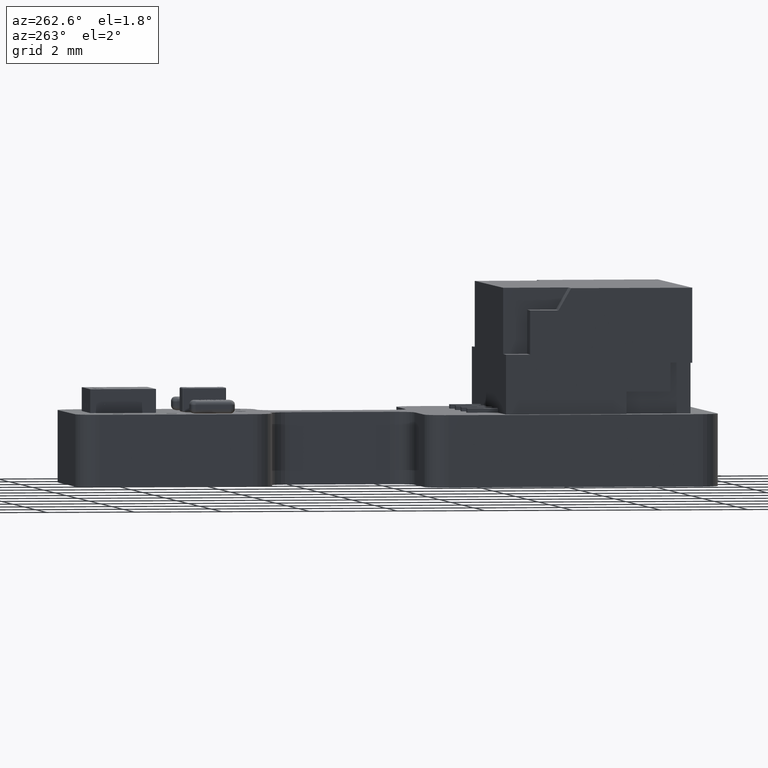
[diagram: clean part render]
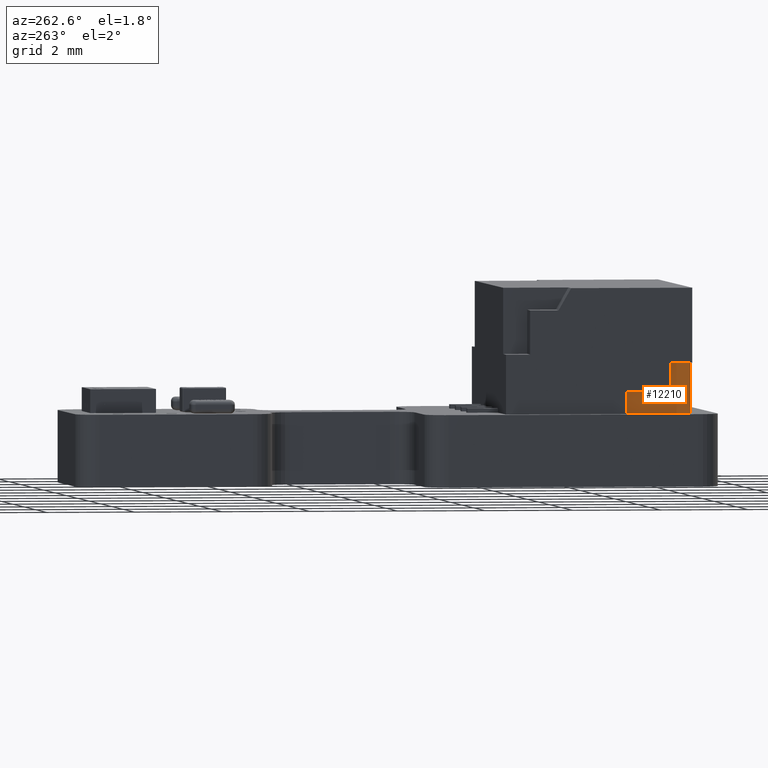
[diagram: same view with one face highlighted and labeled with its STEP entity id]
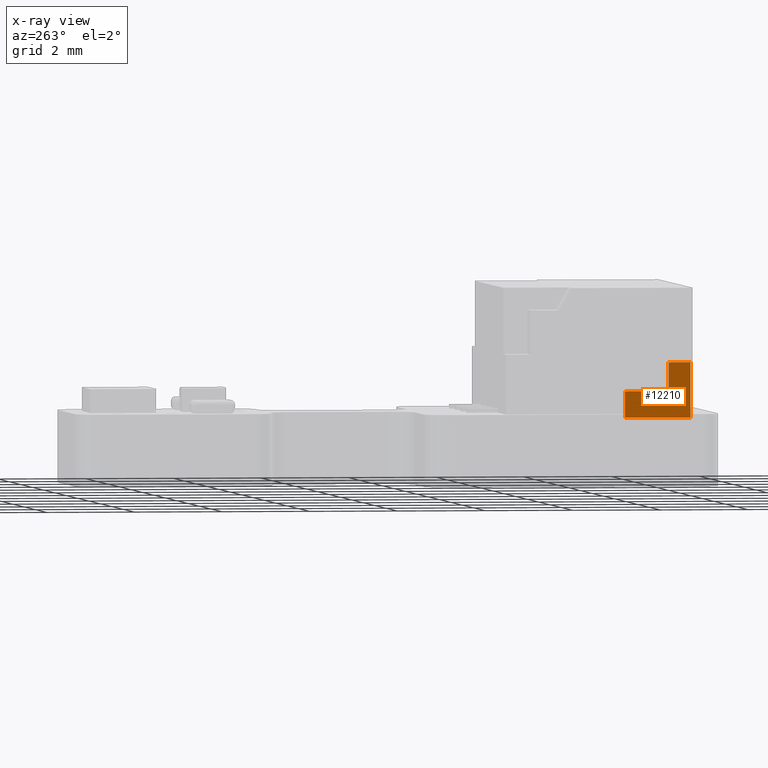
[diagram: x-ray of the same camera — body ghosted, the highlighted face saturated]
A machine part, auxiliary view. The second image highlights one B-rep face of the part: STEP entity #12210.
The next image is the same camera in x-ray: the body ghosted, the highlighted face saturated — about 0% of this face is hidden behind the body in this view.
In plain terms, the highlighted planar face has unit normal (-1, -0, -0).
Its self-contained STEP definition (entity closure, byte-faithful):
#11463 = VERTEX_POINT('',#11464);
#11464 = CARTESIAN_POINT('',(-2.7,1.555,3.895));
#11472 = EDGE_CURVE('',#11463,#11473,#11475,.T.);
#11473 = VERTEX_POINT('',#11474);
#11474 = CARTESIAN_POINT('',(-2.7,0.305,3.895));
#11475 = LINE('',#11476,#11477);
#11476 = CARTESIAN_POINT('',(-2.7,1.555,3.895));
#11477 = VECTOR('',#11478,1.);
#11478 = DIRECTION('',(-2.438091212181E-029,-1.,-3.491483361109E-015));
#12020 = VERTEX_POINT('',#12021);
#12021 = CARTESIAN_POINT('',(-2.7,0.355,2.395));
#12144 = EDGE_CURVE('',#12145,#11463,#12147,.T.);
#12145 = VERTEX_POINT('',#12146);
#12146 = CARTESIAN_POINT('',(-2.7,1.555,3.395));
#12147 = LINE('',#12148,#12149);
#12148 = CARTESIAN_POINT('',(-2.7,1.555,2.595));
#12149 = VECTOR('',#12150,1.);
#12150 = DIRECTION('',(6.982966722219E-015,-3.491483361109E-015,1.));
#12210 = ADVANCED_FACE('',(#12211),#12251,.T.);
#12211 = FACE_BOUND('',#12212,.T.);
#12212 = EDGE_LOOP('',(#12213,#12223,#12229,#12237,#12243,#12244,#12245)
  );
#12213 = ORIENTED_EDGE('',*,*,#12214,.F.);
#12214 = EDGE_CURVE('',#12215,#12217,#12219,.T.);
#12215 = VERTEX_POINT('',#12216);
#12216 = CARTESIAN_POINT('',(-2.7,0.905,2.395));
#12217 = VERTEX_POINT('',#12218);
#12218 = CARTESIAN_POINT('',(-2.7,0.905,3.395));
#12219 = LINE('',#12220,#12221);
#12220 = CARTESIAN_POINT('',(-2.7,0.905,2.095));
#12221 = VECTOR('',#12222,1.);
#12222 = DIRECTION('',(6.982966722219E-015,-3.491483361109E-015,1.));
#12223 = ORIENTED_EDGE('',*,*,#12224,.F.);
#12224 = EDGE_CURVE('',#12020,#12215,#12225,.T.);
#12225 = LINE('',#12226,#12227);
#12226 = CARTESIAN_POINT('',(-2.7,0.305,2.395));
#12227 = VECTOR('',#12228,1.);
#12228 = DIRECTION('',(2.438091212181E-029,1.,3.491483361109E-015));
#12229 = ORIENTED_EDGE('',*,*,#12230,.F.);
#12230 = EDGE_CURVE('',#12231,#12020,#12233,.T.);
#12231 = VERTEX_POINT('',#12232);
#12232 = CARTESIAN_POINT('',(-2.7,0.305,2.395));
#12233 = LINE('',#12234,#12235);
#12234 = CARTESIAN_POINT('',(-2.7,0.305,2.395));
#12235 = VECTOR('',#12236,1.);
#12236 = DIRECTION('',(2.438091212181E-029,1.,3.491483361109E-015));
#12237 = ORIENTED_EDGE('',*,*,#12238,.F.);
#12238 = EDGE_CURVE('',#11473,#12231,#12239,.T.);
#12239 = LINE('',#12240,#12241);
#12240 = CARTESIAN_POINT('',(-2.7,0.305,3.895));
#12241 = VECTOR('',#12242,1.);
#12242 = DIRECTION('',(-6.982966722219E-015,3.613456105514E-015,-1.));
#12243 = ORIENTED_EDGE('',*,*,#11472,.F.);
#12244 = ORIENTED_EDGE('',*,*,#12144,.F.);
#12245 = ORIENTED_EDGE('',*,*,#12246,.F.);
#12246 = EDGE_CURVE('',#12217,#12145,#12247,.T.);
#12247 = LINE('',#12248,#12249);
#12248 = CARTESIAN_POINT('',(-2.7,0.905,3.395));
#12249 = VECTOR('',#12250,1.);
#12250 = DIRECTION('',(2.438091212181E-029,1.,3.491483361109E-015));
#12251 = PLANE('',#12252);
#12252 = AXIS2_PLACEMENT_3D('',#12253,#12254,#12255);
#12253 = CARTESIAN_POINT('',(-2.7,0.905,2.395));
#12254 = DIRECTION('',(-1.,0.E+000,6.982966722219E-015));
#12255 = DIRECTION('',(2.438091212181E-029,1.,3.491483361109E-015));